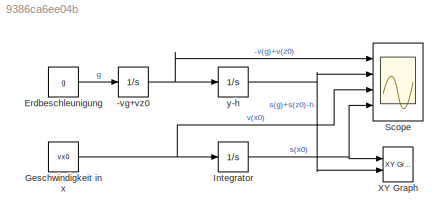
MODEL slx_9386ca6ee04b
KIND model
CONFIG AbsTol = auto
CONFIG EnableMultiTasking = off
CONFIG FixedStep = auto
CONFIG MaxStep = auto
CONFIG MinStep = auto
CONFIG RelTol = 1e-3
CONFIG SampleTimeConstraint = Unconstrained
CONFIG Solver = VariableStepAuto
CONFIG SolverName = VariableStepAuto
CONFIG StartTime = 0.0
CONFIG StopTime = 10.0
BLOCK [Integrator] -vg+vz0
  InitialCondition = vz0
  Ports = [1, 1]
BLOCK [Constant] Erdbeschleunigung
  Value = g
BLOCK [Constant] Geschwindigkeit in x
  Value = vx0
BLOCK [Integrator] Integrator
  Ports = [1, 1]
BLOCK [Scope] Scope
  NumInputPorts = 4
  Ports = [4]
  ScopeSpecificationString = Simulink.scopes.TimeScopeBlockCfg('CurrentConfiguration', extmgr.ConfigurationSet(extmgr.Configuration('Core','General UI',true,'FigureColor',[1 1 1]),extmgr.Configuration('Core','Source UI',true),extmgr.Configuration('Sources','WiredSimulink',true),extmgr.Configuration('Visuals','Time Domain',true,'SerializedDisplays',{struct('MinYLimReal','-446.1875','MaxYLimReal','160.6875','YLabelReal','','Min...<+1705ch>
BLOCK [Reference] XY Graph  REF=simulink/Sinks/XY Graph
  Ports = [2]
  SourceBlock = simulink/Sinks/XY Graph
  SourceType = XY scope.
BLOCK [Integrator] y-h
  InitialCondition = h
  Ports = [1, 1]
NET -vg+vz0:1 -> Scope:1, y-h:1
LINE Erdbeschleunigung:1 -> -vg+vz0:1
NET Geschwindigkeit in x:1 -> Integrator:1, Scope:3
NET Integrator:1 -> Scope:4, XY Graph:1
NET y-h:1 -> Scope:2, XY Graph:2
note: NET lines group one-source signal fan-out (src -> all destinations, sorted); 1:1 wires keep LINE
